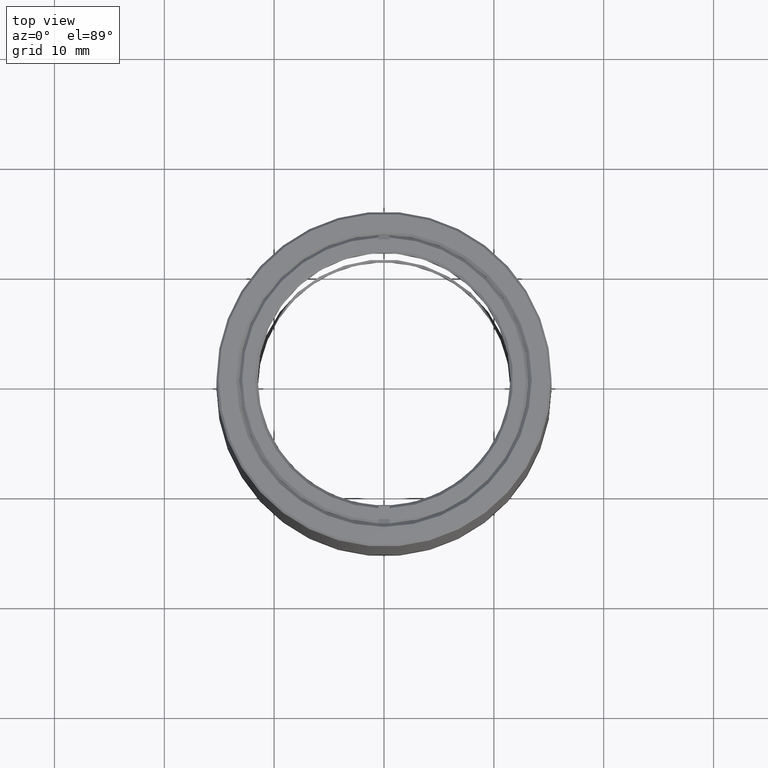
[diagram: clean part render]
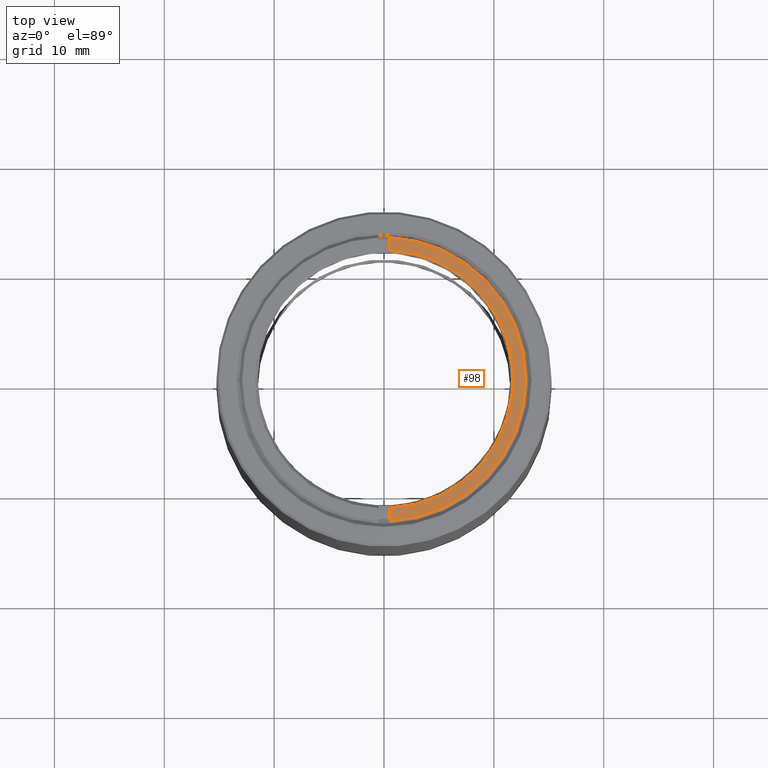
[diagram: same view with one face highlighted and labeled with its STEP entity id]
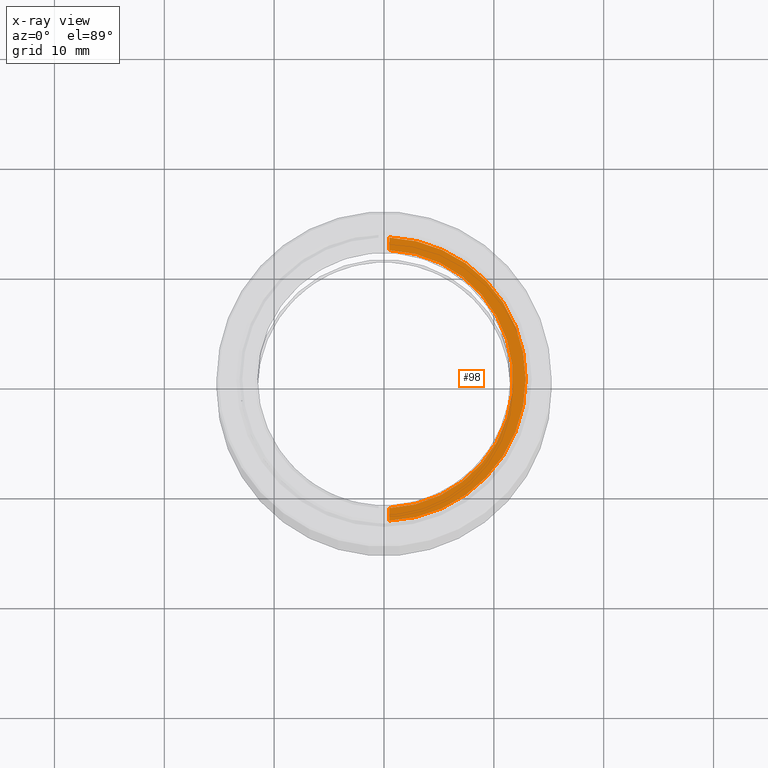
[diagram: x-ray of the same camera — body ghosted, the highlighted face saturated]
A machine part, top view. The second image highlights one B-rep face of the part: STEP entity #98.
The next image is the same camera in x-ray: the body ghosted, the highlighted face saturated — about 0% of this face is hidden behind the body in this view.
In plain terms, the highlighted planar face has unit normal (-0, -0, 1).
Its self-contained STEP definition (entity closure, byte-faithful):
#68 = DIRECTION ( 'NONE',  ( -1.000000000000000000, -1.224646799147353454E-16, -1.224646799147351235E-16 ) ) ;
#98 = ADVANCED_FACE ( 'NONE', ( #1184 ), #1824, .T. ) ;
#160 = CARTESIAN_POINT ( 'NONE',  ( 0.5000000000000011102, -11.74386096009313896, 6.349999999999992539 ) ) ;
#169 = CIRCLE ( 'NONE', #667, 12.89449999999998830 ) ;
#290 = DIRECTION ( 'NONE',  ( -1.000000000000000000, -1.224646799147353207E-16, -1.345320466847732581E-16 ) ) ;
#339 = VECTOR ( 'NONE', #2315, 1000.000000000000000 ) ;
#411 = ORIENTED_EDGE ( 'NONE', *, *, #917, .T. ) ;
#465 = AXIS2_PLACEMENT_3D ( 'NONE', #2076, #2271, #2087 ) ;
#469 = DIRECTION ( 'NONE',  ( -2.453409261297590497E-16, 1.000000000000000000, -1.286532111410922197E-31 ) ) ;
#515 = ORIENTED_EDGE ( 'NONE', *, *, #628, .T. ) ;
#516 = CARTESIAN_POINT ( 'NONE',  ( 0.5000000000000015543, -12.88480229766835095, 6.349999999999991651 ) ) ;
#581 = EDGE_CURVE ( 'NONE', #2187, #1035, #1099, .T. ) ;
#611 = DIRECTION ( 'NONE',  ( -1.000000000000000000, -1.224646799147353207E-16, -1.345320466847732581E-16 ) ) ;
#628 = EDGE_CURVE ( 'NONE', #1485, #1035, #169, .T. ) ;
#667 = AXIS2_PLACEMENT_3D ( 'NONE', #1868, #710, #290 ) ;
#710 = DIRECTION ( 'NONE',  ( -1.224646799147355179E-16, -7.395570986447007571E-32, 1.000000000000000000 ) ) ;
#879 = VECTOR ( 'NONE', #469, 1000.000000000000000 ) ;
#885 = DIRECTION ( 'NONE',  ( -1.224646799147351235E-16, -7.395570986447002097E-32, 1.000000000000000000 ) ) ;
#917 = EDGE_CURVE ( 'NONE', #2513, #1485, #1217, .T. ) ;
#1009 = ORIENTED_EDGE ( 'NONE', *, *, #581, .F. ) ;
#1035 = VERTEX_POINT ( 'NONE', #1581 ) ;
#1087 = CIRCLE ( 'NONE', #465, 11.75449999999999129 ) ;
#1099 = LINE ( 'NONE', #2390, #879 ) ;
#1174 = ORIENTED_EDGE ( 'NONE', *, *, #2312, .T. ) ;
#1184 = FACE_OUTER_BOUND ( 'NONE', #2004, .T. ) ;
#1185 = DIRECTION ( 'NONE',  ( -1.224646799147355179E-16, -7.395570986447007571E-32, 1.000000000000000000 ) ) ;
#1217 = CIRCLE ( 'NONE', #2093, 12.89449999999998830 ) ;
#1335 = AXIS2_PLACEMENT_3D ( 'NONE', #2381, #885, #68 ) ;
#1485 = VERTEX_POINT ( 'NONE', #2479 ) ;
#1503 = VERTEX_POINT ( 'NONE', #160 ) ;
#1556 = ORIENTED_EDGE ( 'NONE', *, *, #2177, .F. ) ;
#1581 = CARTESIAN_POINT ( 'NONE',  ( 0.4999999999999950040, 12.88480229766835095, 6.349999999999991651 ) ) ;
#1707 = LINE ( 'NONE', #1755, #339 ) ;
#1755 = CARTESIAN_POINT ( 'NONE',  ( 0.5000000000000240918, -104.9999999999998437, 6.349999999999991651 ) ) ;
#1769 = CARTESIAN_POINT ( 'NONE',  ( 0.4999999999999954481, 11.74386096009313896, 6.349999999999992539 ) ) ;
#1777 = CARTESIAN_POINT ( 'NONE',  ( -7.776507174585690191E-16, 1.925929944387235415E-31, 6.349999999999991651 ) ) ;
#1824 = PLANE ( 'NONE',  #1335 ) ;
#1868 = CARTESIAN_POINT ( 'NONE',  ( -7.776507174585690191E-16, 1.925929944387235415E-31, 6.349999999999991651 ) ) ;
#2004 = EDGE_LOOP ( 'NONE', ( #1556, #411, #515, #1009, #1174 ) ) ;
#2076 = CARTESIAN_POINT ( 'NONE',  ( -7.776507174585690191E-16, 1.925929944387235415E-31, 6.349999999999991651 ) ) ;
#2087 = DIRECTION ( 'NONE',  ( -1.000000000000000000, -1.010643099614858211E-15, -1.475795206922292275E-16 ) ) ;
#2093 = AXIS2_PLACEMENT_3D ( 'NONE', #1777, #1185, #611 ) ;
#2177 = EDGE_CURVE ( 'NONE', #2513, #1503, #1707, .T. ) ;
#2187 = VERTEX_POINT ( 'NONE', #1769 ) ;
#2271 = DIRECTION ( 'NONE',  ( 1.224646799147355179E-16, 7.395570986447007571E-32, -1.000000000000000000 ) ) ;
#2312 = EDGE_CURVE ( 'NONE', #2187, #1503, #1087, .T. ) ;
#2315 = DIRECTION ( 'NONE',  ( -2.453409261297590497E-16, 1.000000000000000000, -1.286532111410922197E-31 ) ) ;
#2381 = CARTESIAN_POINT ( 'NONE',  ( -7.776507174585690191E-16, 1.925929944387235415E-31, 6.349999999999991651 ) ) ;
#2390 = CARTESIAN_POINT ( 'NONE',  ( 0.5000000000000240918, -104.9999999999998437, 6.349999999999991651 ) ) ;
#2479 = CARTESIAN_POINT ( 'NONE',  ( 12.89449999999999896, 1.594428900149896349E-15, 6.349999999999993427 ) ) ;
#2513 = VERTEX_POINT ( 'NONE', #516 ) ;